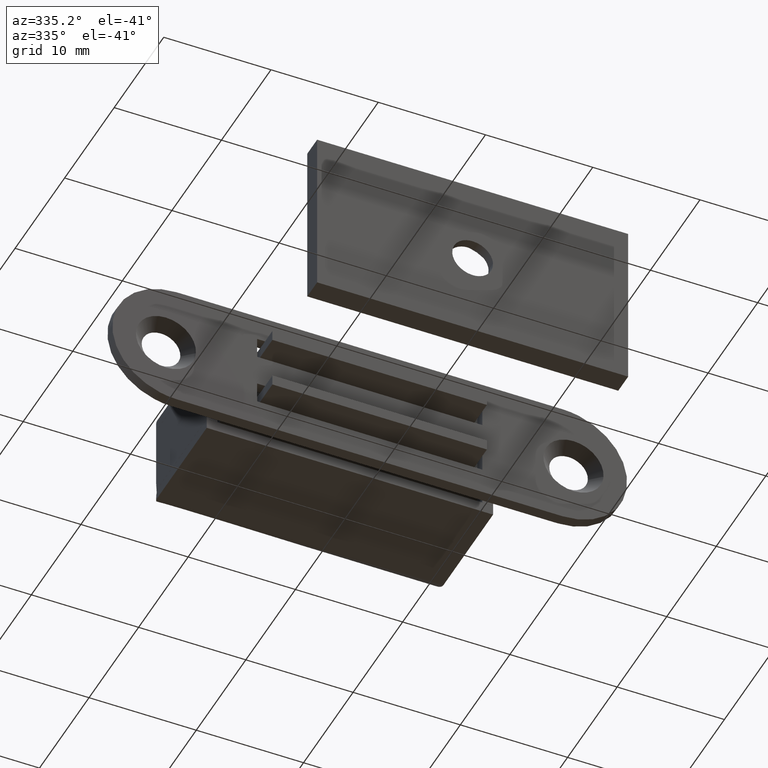
[diagram: clean part render]
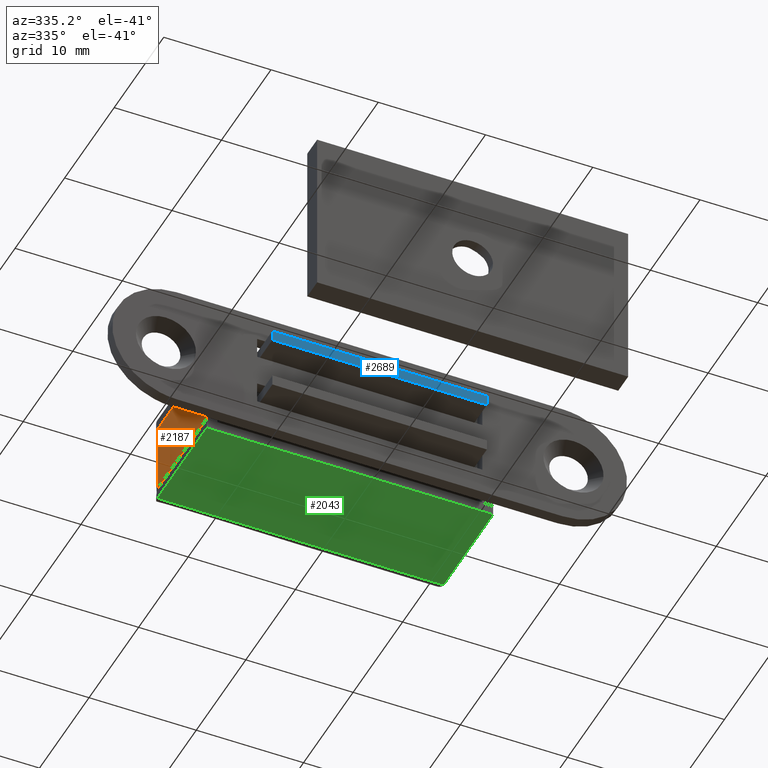
[diagram: same view with three faces highlighted in distinct colors, each labeled with its STEP entity id]
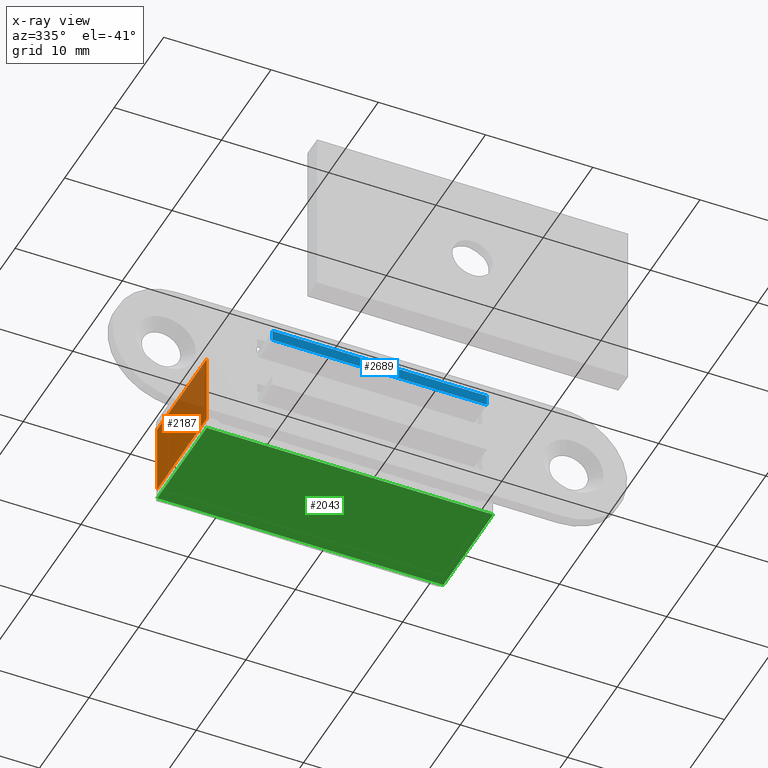
[diagram: x-ray of the same camera — body ghosted, the three highlighted faces saturated]
A machine part, auxiliary view with three faces highlighted in distinct colors.
The next image is the same camera in x-ray (body ghosted, the three faces saturated) — at least one of them is partly hidden behind the body in this view.
Their STEP definitions:

[orange] entity #2187 — the highlighted face is a freeform B-spline surface patch.
#1849=CARTESIAN_POINT('',(-13.349999000000000,-1.0,3.339998000000000));
#1850=VERTEX_POINT('',#1849);
#1857=CARTESIAN_POINT('',(-13.349999000000000,-1.0,-3.339999000000000));
#1858=VERTEX_POINT('',#1857);
#1925=CARTESIAN_POINT('',(-13.349999000000000,-10.999991999999800,3.339998000000000));
#1926=VERTEX_POINT('',#1925);
#1927=CARTESIAN_POINT('',(-13.349999000000000,-10.999991999999800,3.339998000000000));
#1928=CARTESIAN_POINT('',(-13.349999000000000,-1.0,3.339998000000000));
#1929=QUASI_UNIFORM_CURVE('',1,(#1927,#1928),.UNSPECIFIED.,.F.,.U.);
#1930=EDGE_CURVE('',#1926,#1850,#1929,.T.);
#1947=CARTESIAN_POINT('',(-13.349999000000000,-10.999991999999800,-3.339999000000000));
#1948=VERTEX_POINT('',#1947);
#1949=CARTESIAN_POINT('',(-13.349999000000000,-10.999991999999800,-3.339999000000000));
#1950=CARTESIAN_POINT('',(-13.349999000000000,-10.999991999999800,3.339998000000000));
#1951=QUASI_UNIFORM_CURVE('',1,(#1949,#1950),.UNSPECIFIED.,.F.,.U.);
#1952=EDGE_CURVE('',#1948,#1926,#1951,.T.);
#1969=CARTESIAN_POINT('',(-13.349999000000000,-1.0,-3.339999000000000));
#1970=CARTESIAN_POINT('',(-13.349999000000000,-10.999991999999800,-3.339999000000000));
#1971=QUASI_UNIFORM_CURVE('',1,(#1969,#1970),.UNSPECIFIED.,.F.,.U.);
#1972=EDGE_CURVE('',#1858,#1948,#1971,.T.);
#2172=CARTESIAN_POINT('',(-13.349999000000000,-11.499491581017869,3.673663837202871));
#2173=CARTESIAN_POINT('',(-13.349999000000000,-0.500500150761248,3.673663837202871));
#2174=CARTESIAN_POINT('',(-13.349999000000000,-11.499491581017869,-3.673665016374353));
#2175=CARTESIAN_POINT('',(-13.349999000000000,-0.500500150761248,-3.673665016374353));
#2176=B_SPLINE_SURFACE_WITH_KNOTS('',1,1,((#2172,#2174),(#2173,#2175)),.UNSPECIFIED.,.F.,.F.,.U.,(2,2),(2,2),(0.0,10.998991430256620),(0.0,7.347328853577223),.UNSPECIFIED.);
#2177=ORIENTED_EDGE('',*,*,#1930,.T.);
#2178=CARTESIAN_POINT('',(-13.349999000000000,-1.0,3.339998000000000));
#2179=CARTESIAN_POINT('',(-13.349999000000000,-1.0,-3.339999000000000));
#2180=QUASI_UNIFORM_CURVE('',1,(#2178,#2179),.UNSPECIFIED.,.F.,.U.);
#2181=EDGE_CURVE('',#1850,#1858,#2180,.T.);
#2182=ORIENTED_EDGE('',*,*,#2181,.T.);
#2183=ORIENTED_EDGE('',*,*,#1972,.T.);
#2184=ORIENTED_EDGE('',*,*,#1952,.T.);
#2185=EDGE_LOOP('',(#2177,#2182,#2183,#2184));
#2186=FACE_OUTER_BOUND('',#2185,.T.);
#2187=ADVANCED_FACE('',(#2186),#2176,.T.);

[blue] entity #2689 — the highlighted face is a freeform B-spline surface patch.
#2453=CARTESIAN_POINT('',(10.0,-17.0,3.0));
#2454=VERTEX_POINT('',#2453);
#2495=CARTESIAN_POINT('',(-10.0,-17.0,3.0));
#2496=VERTEX_POINT('',#2495);
#2502=CARTESIAN_POINT('',(10.0,-17.0,3.0));
#2503=CARTESIAN_POINT('',(-10.0,-17.0,3.0));
#2504=QUASI_UNIFORM_CURVE('',1,(#2502,#2503),.UNSPECIFIED.,.F.,.U.);
#2505=EDGE_CURVE('',#2454,#2496,#2504,.T.);
#2517=CARTESIAN_POINT('',(10.0,-17.0,2.0));
#2518=VERTEX_POINT('',#2517);
#2524=CARTESIAN_POINT('',(-10.0,-17.0,2.0));
#2525=VERTEX_POINT('',#2524);
#2526=CARTESIAN_POINT('',(10.0,-17.0,2.0));
#2527=CARTESIAN_POINT('',(-10.0,-17.0,2.0));
#2528=QUASI_UNIFORM_CURVE('',1,(#2526,#2527),.UNSPECIFIED.,.F.,.U.);
#2529=EDGE_CURVE('',#2518,#2525,#2528,.T.);
#2666=CARTESIAN_POINT('',(-10.0,-17.0,2.0));
#2667=CARTESIAN_POINT('',(-10.0,-17.0,3.0));
#2668=QUASI_UNIFORM_CURVE('',1,(#2666,#2667),.UNSPECIFIED.,.F.,.U.);
#2669=EDGE_CURVE('',#2525,#2496,#2668,.T.);
#2674=CARTESIAN_POINT('',(-10.998999961236120,-17.0,1.950050001938194));
#2675=CARTESIAN_POINT('',(-10.998999961236120,-17.0,3.049950024883897));
#2676=CARTESIAN_POINT('',(10.999000497677921,-17.0,1.950050001938194));
#2677=CARTESIAN_POINT('',(10.999000497677921,-17.0,3.049950024883897));
#2678=B_SPLINE_SURFACE_WITH_KNOTS('',1,1,((#2674,#2676),(#2675,#2677)),.UNSPECIFIED.,.F.,.F.,.U.,(2,2),(2,2),(0.041708334948495,0.958291687403247),(0.0,21.998000458914039),.UNSPECIFIED.);
#2679=ORIENTED_EDGE('',*,*,#2505,.T.);
#2680=ORIENTED_EDGE('',*,*,#2669,.F.);
#2681=ORIENTED_EDGE('',*,*,#2529,.F.);
#2682=CARTESIAN_POINT('',(10.0,-17.0,2.0));
#2683=CARTESIAN_POINT('',(10.0,-17.0,3.0));
#2684=QUASI_UNIFORM_CURVE('',1,(#2682,#2683),.UNSPECIFIED.,.F.,.U.);
#2685=EDGE_CURVE('',#2518,#2454,#2684,.T.);
#2686=ORIENTED_EDGE('',*,*,#2685,.T.);
#2687=EDGE_LOOP('',(#2679,#2680,#2681,#2686));
#2688=FACE_OUTER_BOUND('',#2687,.T.);
#2689=ADVANCED_FACE('',(#2688),#2678,.F.);

[green] entity #2043 — the highlighted face is a freeform B-spline surface patch.
#1822=CARTESIAN_POINT('',(-13.349999000000000,-1.0,-4.349999000000000));
#1823=VERTEX_POINT('',#1822);
#1829=CARTESIAN_POINT('',(-13.349999000000000,-10.999991999999800,-4.349999000000000));
#1830=VERTEX_POINT('',#1829);
#1831=CARTESIAN_POINT('',(-13.349999000000000,-1.0,-4.349999000000000));
#1832=CARTESIAN_POINT('',(-13.349999000000000,-10.999991999999800,-4.349999000000000));
#1833=QUASI_UNIFORM_CURVE('',1,(#1831,#1832),.UNSPECIFIED.,.F.,.U.);
#1834=EDGE_CURVE('',#1823,#1830,#1833,.T.);
#2006=CARTESIAN_POINT('',(13.349998000000021,-10.999991999999800,-4.349999000000000));
#2007=VERTEX_POINT('',#2006);
#2008=CARTESIAN_POINT('',(13.349998000000021,-10.999991999999800,-4.349999000000000));
#2009=CARTESIAN_POINT('',(-13.349999000000000,-10.999991999999800,-4.349999000000000));
#2010=QUASI_UNIFORM_CURVE('',1,(#2008,#2009),.UNSPECIFIED.,.F.,.U.);
#2011=EDGE_CURVE('',#2007,#1830,#2010,.T.);
#2022=CARTESIAN_POINT('',(14.683662798400251,-11.499491581017869,-4.349999000000000));
#2023=CARTESIAN_POINT('',(-14.683664514549950,-11.499491581017869,-4.349999000000000));
#2024=CARTESIAN_POINT('',(14.683662798400251,-0.500500150761248,-4.349999000000000));
#2025=CARTESIAN_POINT('',(-14.683664514549950,-0.500500150761248,-4.349999000000000));
#2026=B_SPLINE_SURFACE_WITH_KNOTS('',1,1,((#2022,#2024),(#2023,#2025)),.UNSPECIFIED.,.F.,.F.,.U.,(2,2),(2,2),(0.0,29.367327312950199),(0.0,10.998991430256620),.UNSPECIFIED.);
#2027=ORIENTED_EDGE('',*,*,#1834,.F.);
#2028=CARTESIAN_POINT('',(13.349998000000021,-1.0,-4.349999000000000));
#2029=VERTEX_POINT('',#2028);
#2030=CARTESIAN_POINT('',(-13.349999000000000,-1.0,-4.349999000000000));
#2031=CARTESIAN_POINT('',(13.349998000000021,-1.0,-4.349999000000000));
#2032=QUASI_UNIFORM_CURVE('',1,(#2030,#2031),.UNSPECIFIED.,.F.,.U.);
#2033=EDGE_CURVE('',#1823,#2029,#2032,.T.);
#2034=ORIENTED_EDGE('',*,*,#2033,.T.);
#2035=CARTESIAN_POINT('',(13.349998000000021,-1.0,-4.349999000000000));
#2036=CARTESIAN_POINT('',(13.349998000000021,-10.999991999999800,-4.349999000000000));
#2037=QUASI_UNIFORM_CURVE('',1,(#2035,#2036),.UNSPECIFIED.,.F.,.U.);
#2038=EDGE_CURVE('',#2029,#2007,#2037,.T.);
#2039=ORIENTED_EDGE('',*,*,#2038,.T.);
#2040=ORIENTED_EDGE('',*,*,#2011,.T.);
#2041=EDGE_LOOP('',(#2027,#2034,#2039,#2040));
#2042=FACE_OUTER_BOUND('',#2041,.T.);
#2043=ADVANCED_FACE('',(#2042),#2026,.T.);